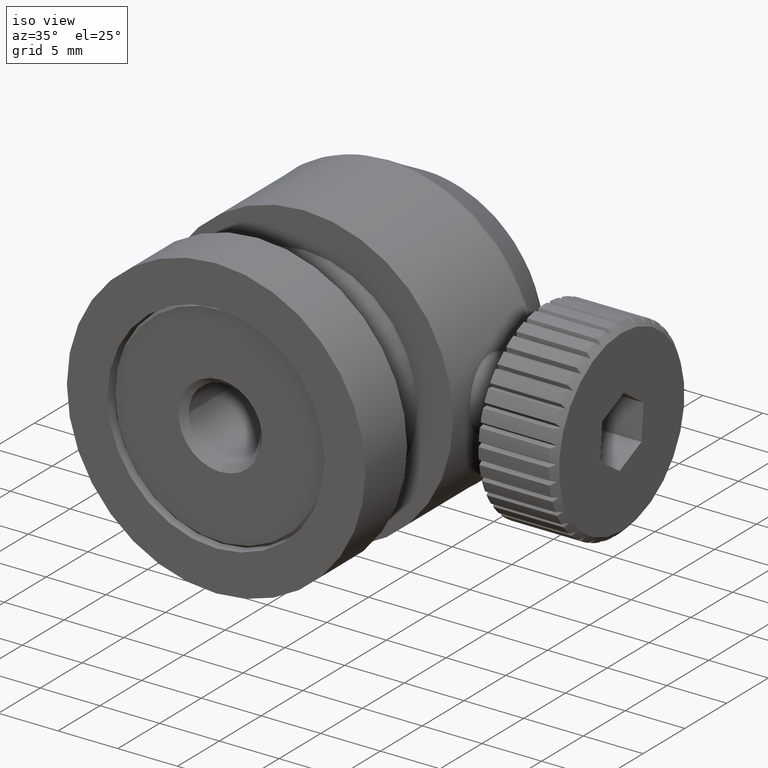
[diagram: clean part render]
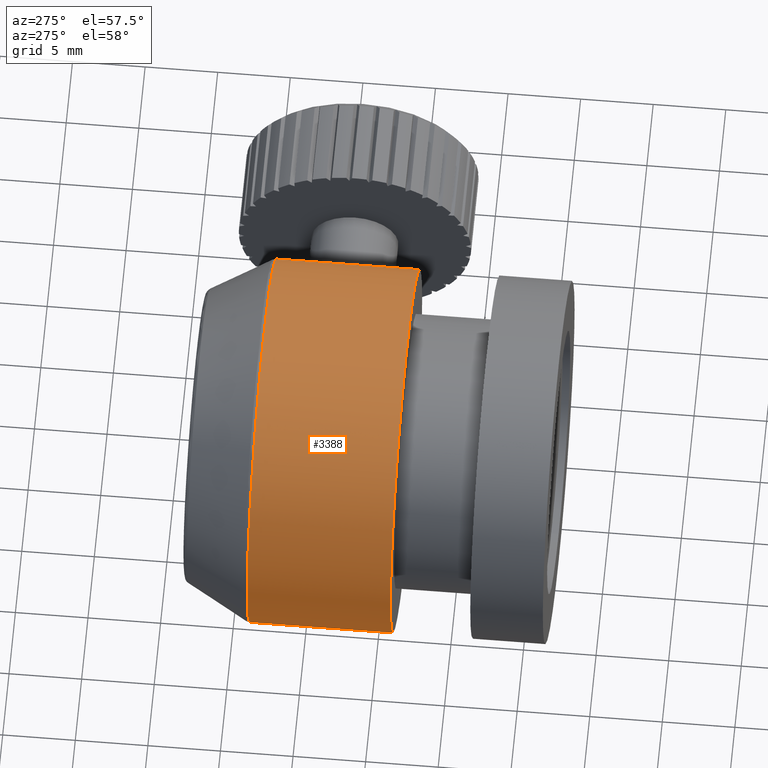
[diagram: tour spotlight — one face highlighted and labeled with its STEP entity id]
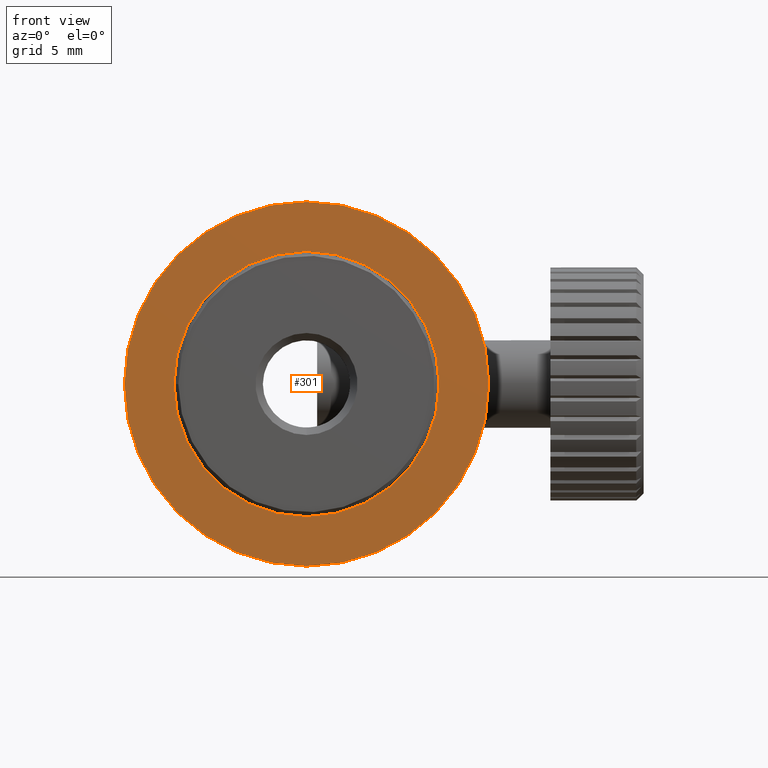
[diagram: tour spotlight — one face highlighted and labeled with its STEP entity id]
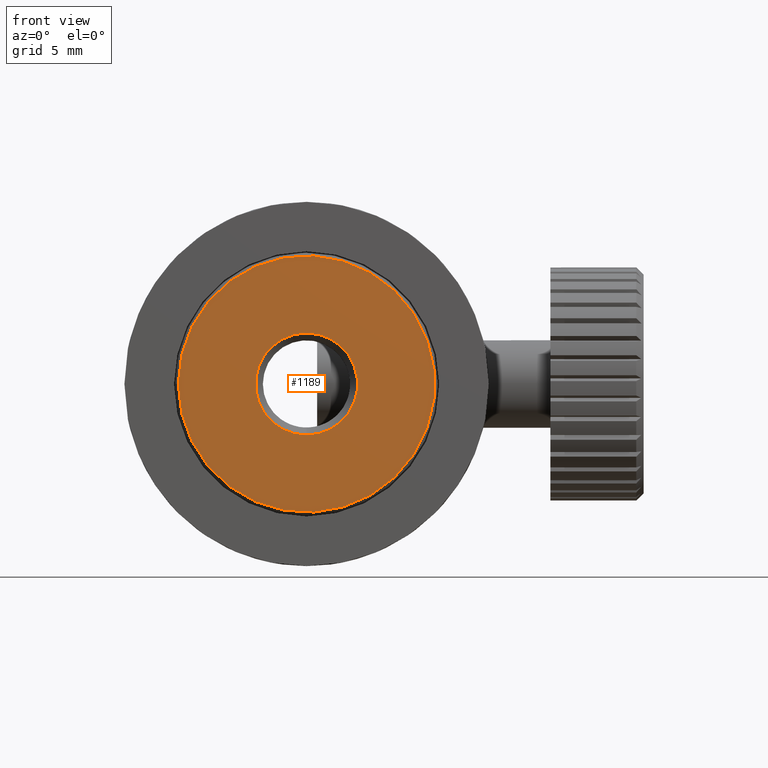
[diagram: tour spotlight — one face highlighted and labeled with its STEP entity id]
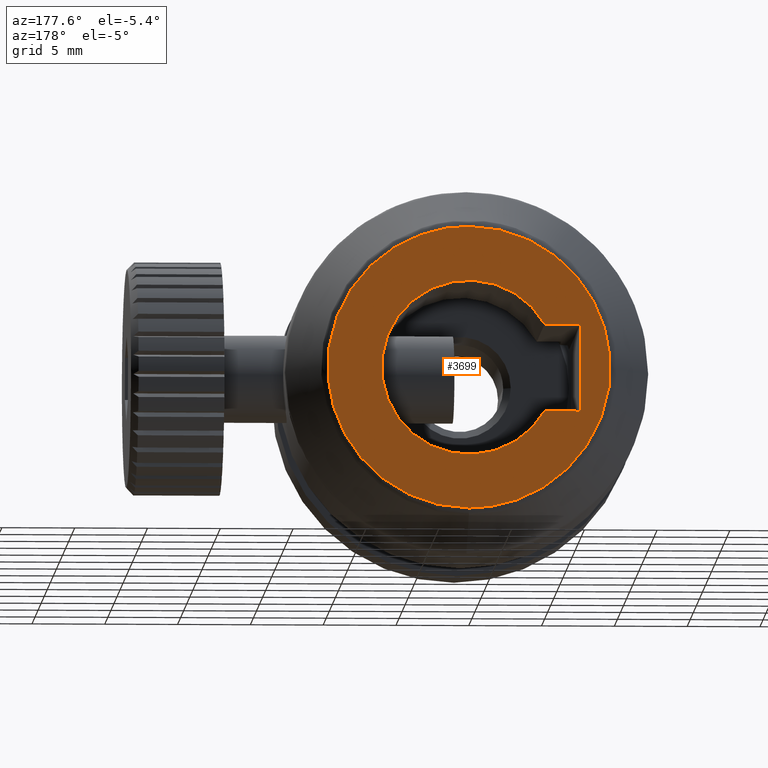
[diagram: tour spotlight — one face highlighted and labeled with its STEP entity id]
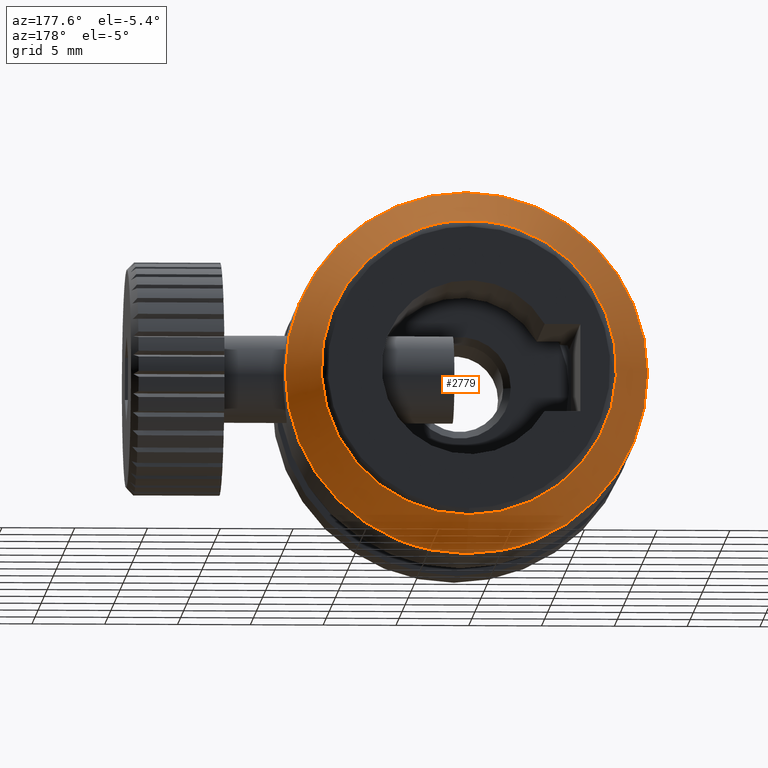
[diagram: tour spotlight — one face highlighted and labeled with its STEP entity id]
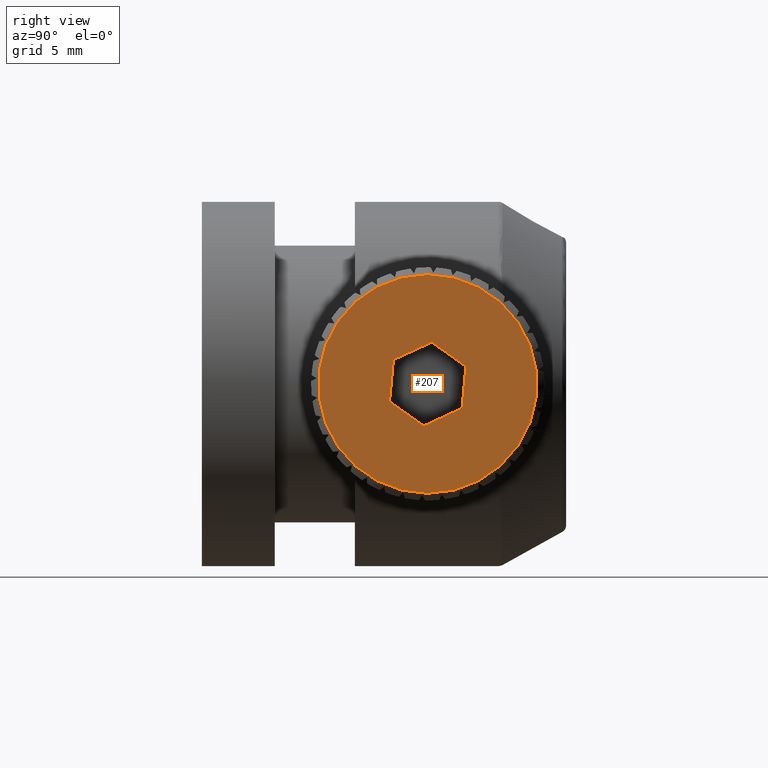
[diagram: tour spotlight — one face highlighted and labeled with its STEP entity id]
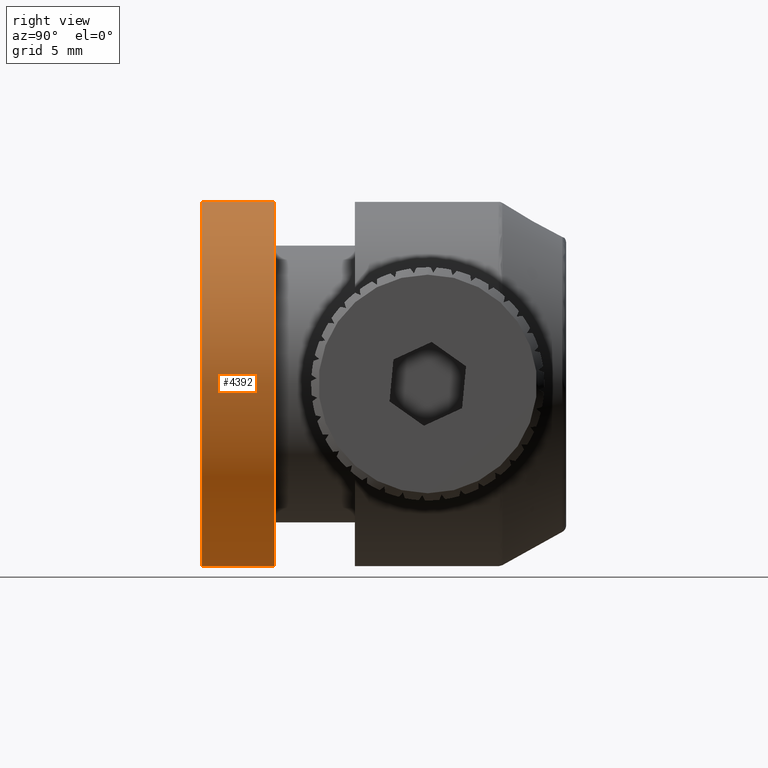
[diagram: tour spotlight — one face highlighted and labeled with its STEP entity id]
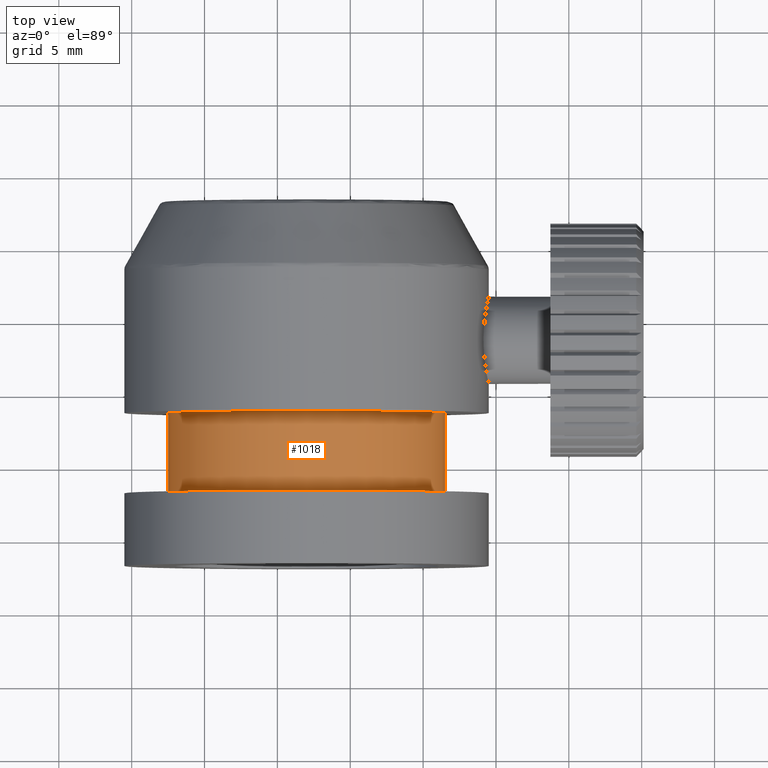
[diagram: tour spotlight — one face highlighted and labeled with its STEP entity id]
A machine part: a face-by-face anatomy tour. The part has 154 B-rep faces; the first image is the clean iso view, then the 8 largest visible faces are spotlighted one at a time (largest first), each with its STEP entity span.

Face 1 — auxiliary view, entity #3388. In plain terms, the highlighted cylindrical surface (bore or boss wall) has radius 12.5 mm, axis along (-0, -1, -0).
Definition (entity closure, byte-faithful):
#24 = CARTESIAN_POINT ( 'NONE',  ( 9.163176609315401677, 4.514492835842152552, -4.021707213226034305 ) ) ;
#76 = CARTESIAN_POINT ( 'NONE',  ( 9.500769051283153743, 6.682619336287463518, -1.281978667220213586 ) ) ;
#79 = DIRECTION ( 'NONE',  ( -0.000000000000000000, -1.000000000000000000, -0.000000000000000000 ) ) ;
#99 = CARTESIAN_POINT ( 'NONE',  ( 9.350215221376533492, 5.977588247585364556, -3.078107849027253984 ) ) ;
#116 = CARTESIAN_POINT ( 'NONE',  ( 9.500769051283150191, 6.682619336287461742, -1.281978667220213364 ) ) ;
#260 = EDGE_LOOP ( 'NONE', ( #4182 ) ) ;
#361 = CARTESIAN_POINT ( 'NONE',  ( 9.475626162119899831, 6.576659514297270803, -0.3040923682111593696 ) ) ;
#408 = CARTESIAN_POINT ( 'NONE',  ( 9.134845968783585235, 3.734947239153960208, -4.137683601139375611 ) ) ;
#433 = CARTESIAN_POINT ( 'NONE',  ( 9.500721253213100681, 0.6902226663362029946, -1.380176275664624086 ) ) ;
#459 = CARTESIAN_POINT ( 'NONE',  ( 9.498379621943797702, 6.672651579155293611, -1.480653724934849258 ) ) ;
#466 = CARTESIAN_POINT ( 'NONE',  ( -2.998327019143730343, 8.556824926291442424, -1.131654277185413671 ) ) ;
#476 = VERTEX_POINT ( 'NONE', #3218 ) ;
#490 = CARTESIAN_POINT ( 'NONE',  ( 9.453531733571725937, 0.8925454330711524165, -0.02124282320555520576 ) ) ;
#511 = CARTESIAN_POINT ( 'NONE',  ( 9.395644190629806047, 6.210992014393335481, -2.764031263225652069 ) ) ;
#684 = CARTESIAN_POINT ( 'NONE',  ( 9.137221659089169279, 3.441916285020556909, 1.864902151995117219 ) ) ;
#706 = CARTESIAN_POINT ( 'NONE',  ( 9.350229071283225224, 1.395113090282477319, 0.8147122959667493225 ) ) ;
#718 = AXIS2_PLACEMENT_3D ( 'NONE', #2115, #4986, #3811 ) ;
#750 = CARTESIAN_POINT ( 'NONE',  ( 9.151403641072686668, 3.050636586225807356, 1.806872060831741233 ) ) ;
#802 = CARTESIAN_POINT ( 'NONE',  ( -2.998327019143730343, 13.18638794039016382, -1.131654277185413671 ) ) ;
#1042 = B_SPLINE_CURVE_WITH_KNOTS ( 'NONE', 3,
 ( #76, #459, #2037, #4850, #4354, #1624, #511, #99, #3623, #1646, #4385, #2375, #2454, #24, #3965, #3203, #408, #3229, #3671, #3593, #4770, #4463, #1982, #3570, #3178, #3992, #4825, #1274, #2850, #1295, #2060, #433, #4408, #2006, #4800, #1250, #490, #4434, #2877, #706, #1505, #3454, #1909, #2726, #4307, #2676, #750, #684, #5066, #1553, #4334, #1151, #2330, #3157, #4726, #1201, #3915, #4751, #3522, #3133, #3086, #361, #4653, #3864, #3066, #2280 ),
 .UNSPECIFIED., .T., .F.,
 ( 4, 2, 2, 2, 2, 2, 2, 2, 2, 2, 2, 2, 2, 2, 2, 2, 2, 2, 2, 2, 2, 2, 2, 2, 2, 2, 2, 2, 2, 2, 2, 2, 4 ),
 ( 0.000000000000000000, 0.0005881664555554937113, 0.001176332911110986772, 0.001764499366666479833, 0.002352665822221972677, 0.002940832277777465954, 0.003528998733332959232, 0.004117165188888452509, 0.004705331644443946221, 0.005293498099999439932, 0.005881664555554933643, 0.006469831011110428222, 0.007057997466665922801, 0.007646163922221416512, 0.008234330377776911958, 0.008822496833332405669, 0.009410663288887901115, 0.009998829744443394826, 0.01058699619999888854, 0.01117516265555438225, 0.01176332911110987596, 0.01235149556666536967, 0.01293966202222086338, 0.01352782847777635709, 0.01411599493333184907, 0.01470416138888734278, 0.01529232784444283649, 0.01588049429999833020, 0.01646866075555382392, 0.01705682721110931763, 0.01764499366666481134, 0.01823316012222030505, 0.01882132657777580223 ),
 .UNSPECIFIED. ) ;
#1151 = CARTESIAN_POINT ( 'NONE',  ( 9.169892280574110544, 4.609257943614935904, 1.729616266510543676 ) ) ;
#1198 = CYLINDRICAL_SURFACE ( 'NONE', #2953, 12.50000000000000000 ) ;
#1201 = CARTESIAN_POINT ( 'NONE',  ( 9.290286899935319198, 5.631634723888747196, 1.160504087481614377 ) ) ;
#1250 = CARTESIAN_POINT ( 'NONE',  ( 9.469014655756220478, 0.8251341758155132933, -0.2088429828218351658 ) ) ;
#1274 = CARTESIAN_POINT ( 'NONE',  ( 9.426693008287031716, 1.014162850858614240, -2.509079807481182200 ) ) ;
#1295 = CARTESIAN_POINT ( 'NONE',  ( 9.475616185800644686, 0.7961592793452608730, -1.959364303262693063 ) ) ;
#1505 = CARTESIAN_POINT ( 'NONE',  ( 9.325840296848397770, 1.528746268889934701, 0.9618025633223470372 ) ) ;
#1553 = CARTESIAN_POINT ( 'NONE',  ( 9.139617462845981422, 4.030147580880958813, 1.855050062348168494 ) ) ;
#1624 = CARTESIAN_POINT ( 'NONE',  ( 9.416774122290975768, 6.311555873365544578, -2.596938967289602385 ) ) ;
#1628 = DIRECTION ( 'NONE',  ( -0.000000000000000000, -1.000000000000000000, -0.000000000000000000 ) ) ;
#1646 = CARTESIAN_POINT ( 'NONE',  ( 9.278534698509476542, 5.554983848913791711, -3.486718012574621106 ) ) ;
#1909 = CARTESIAN_POINT ( 'NONE',  ( 9.255383784605539788, 1.974211940572013102, 1.339642189448289056 ) ) ;
#1982 = CARTESIAN_POINT ( 'NONE',  ( 9.244650142299970952, 2.054076175215877598, -3.656239430481850849 ) ) ;
#2006 = CARTESIAN_POINT ( 'NONE',  ( 9.498385047728998387, 0.7001016363448165913, -0.7828446128214767707 ) ) ;
#2033 = EDGE_CURVE ( 'NONE', #476, #476, #2708, .T. ) ;
#2034 = CIRCLE ( 'NONE', #718, 12.50000000000000000 ) ;
#2037 = CARTESIAN_POINT ( 'NONE',  ( 9.491314626815036348, 6.643297461665347292, -1.674827156962167329 ) ) ;
#2060 = CARTESIAN_POINT ( 'NONE',  ( 9.486901362137471594, 0.7484079596056956163, -1.769653623332918313 ) ) ;
#2115 = CARTESIAN_POINT ( 'NONE',  ( -2.998327019143730343, -1.313612059609838401, -1.131654277185413671 ) ) ;
#2193 = EDGE_CURVE ( 'NONE', #4423, #4423, #2034, .T. ) ;
#2280 = CARTESIAN_POINT ( 'NONE',  ( 9.500769051283153743, 6.682619336287463518, -1.281978667220213586 ) ) ;
#2330 = CARTESIAN_POINT ( 'NONE',  ( 9.185441045650920344, 4.793412070943418257, 1.663566113122384005 ) ) ;
#2375 = CARTESIAN_POINT ( 'NONE',  ( 9.212728881278479776, 5.060434209225719293, -3.805761009313503251 ) ) ;
#2430 = DIRECTION ( 'NONE',  ( 0.000000000000000000, 0.000000000000000000, -1.000000000000000000 ) ) ;
#2454 = CARTESIAN_POINT ( 'NONE',  ( 9.193745087608244049, 4.882301594918082799, -3.889906300098157743 ) ) ;
#2471 = CARTESIAN_POINT ( 'NONE',  ( -2.998327019143730343, -1.313612059609838401, -13.63165427718541345 ) ) ;
#2676 = CARTESIAN_POINT ( 'NONE',  ( 9.163179187320837471, 2.858243764692179223, 1.758387946751902797 ) ) ;
#2708 = CIRCLE ( 'NONE', #4779, 12.50000000000000000 ) ;
#2726 = CARTESIAN_POINT ( 'NONE',  ( 9.212735498135756984, 2.312282415570549698, 1.542422551742604897 ) ) ;
#2850 = CARTESIAN_POINT ( 'NONE',  ( 9.445586626568635680, 0.9286443963139656699, -2.328891156629207426 ) ) ;
#2877 = CARTESIAN_POINT ( 'NONE',  ( 9.395658610685588386, 1.161713166734947844, 0.5006142555900848778 ) ) ;
#2889 = EDGE_LOOP ( 'NONE', ( #4208 ) ) ;
#2953 = AXIS2_PLACEMENT_3D ( 'NONE', #802, #79, #2430 ) ;
#3066 = CARTESIAN_POINT ( 'NONE',  ( 9.503158480622509785, 6.692587093419634314, -1.083303609505577469 ) ) ;
#3086 = CARTESIAN_POINT ( 'NONE',  ( 9.445599072311253508, 6.444187492963299846, 0.06545478716418613729 ) ) ;
#3133 = CARTESIAN_POINT ( 'NONE',  ( 9.426705968667430824, 6.358673202455701556, 0.2456557266747805279 ) ) ;
#3157 = CARTESIAN_POINT ( 'NONE',  ( 9.222907271617101443, 5.149215940732495334, 1.494920240591327776 ) ) ;
#3159 = ORIENTED_EDGE ( 'NONE', *, *, #2193, .T. ) ;
#3178 = CARTESIAN_POINT ( 'NONE',  ( 9.314489278056242938, 1.595377278743747018, -3.291832648624133828 ) ) ;
#3203 = CARTESIAN_POINT ( 'NONE',  ( 9.137221461661958699, 3.930843337945530980, -4.128211476783869571 ) ) ;
#3218 = CARTESIAN_POINT ( 'NONE',  ( -2.998327019143730343, 8.556824926291442424, -13.63165427718541345 ) ) ;
#3229 = CARTESIAN_POINT ( 'NONE',  ( 9.139617363989675169, 3.342636433386644068, -4.118359017095328589 ) ) ;
#3388 = ADVANCED_FACE ( 'NONE', ( #4332, #3968, #3548 ), #1198, .T. ) ;
#3454 = CARTESIAN_POINT ( 'NONE',  ( 9.278545326057347609, 1.817722071276930862, 1.223354638991832388 ) ) ;
#3522 = CARTESIAN_POINT ( 'NONE',  ( 9.385037029951631027, 6.157697096704836781, 0.5802810085369406456 ) ) ;
#3548 = FACE_BOUND ( 'NONE', #2889, .T. ) ;
#3570 = CARTESIAN_POINT ( 'NONE',  ( 9.290277126451748302, 1.741203175325201302, -3.423864591430237247 ) ) ;
#3593 = CARTESIAN_POINT ( 'NONE',  ( 9.169890038928070197, 2.763549005709383444, -3.992934291983290862 ) ) ;
#3623 = CARTESIAN_POINT ( 'NONE',  ( 9.325827379994288790, 5.843955711924929908, -3.225186502476228512 ) ) ;
#3628 = DIRECTION ( 'NONE',  ( 0.000000000000000000, 0.000000000000000000, -1.000000000000000000 ) ) ;
#3671 = CARTESIAN_POINT ( 'NONE',  ( 9.146945875692960470, 3.144374087183303690, -4.088811020642943994 ) ) ;
#3770 = EDGE_LOOP ( 'NONE', ( #3159 ) ) ;
#3811 = DIRECTION ( 'NONE',  ( 0.000000000000000000, 0.000000000000000000, -1.000000000000000000 ) ) ;
#3864 = CARTESIAN_POINT ( 'NONE',  ( 9.500725014924435996, 6.682568817747568168, -0.8833129565033172037 ) ) ;
#3915 = CARTESIAN_POINT ( 'NONE',  ( 9.314500426647823517, 5.777464247714756418, 1.028461208328204091 ) ) ;
#3965 = CARTESIAN_POINT ( 'NONE',  ( 9.151402073302767448, 4.322106849381766480, -4.070187067645612444 ) ) ;
#3968 = FACE_OUTER_BOUND ( 'NONE', #3770, .T. ) ;
#3992 = CARTESIAN_POINT ( 'NONE',  ( 9.362094269580170547, 1.331203265409273584, -3.000290499216278661 ) ) ;
#4182 = ORIENTED_EDGE ( 'NONE', *, *, #2033, .T. ) ;
#4208 = ORIENTED_EDGE ( 'NONE', *, *, #4214, .T. ) ;
#4214 = EDGE_CURVE ( 'NONE', #4865, #4865, #1042, .T. ) ;
#4307 = CARTESIAN_POINT ( 'NONE',  ( 9.193750119214248784, 2.490422007122204739, 1.626575647665945645 ) ) ;
#4332 = FACE_OUTER_BOUND ( 'NONE', #260, .T. ) ;
#4334 = CARTESIAN_POINT ( 'NONE',  ( 9.146946489143264358, 4.228418112912099680, 1.825500006775789164 ) ) ;
#4354 = CARTESIAN_POINT ( 'NONE',  ( 9.453518627230382165, 6.480172170676156362, -2.242210702578229409 ) ) ;
#4385 = CARTESIAN_POINT ( 'NONE',  ( 9.255374477968643987, 5.398496969044234817, -3.602996551682191129 ) ) ;
#4408 = CARTESIAN_POINT ( 'NONE',  ( 9.503157809845655279, 0.6801916166517835149, -1.180210788842948277 ) ) ;
#4423 = VERTEX_POINT ( 'NONE', #2471 ) ;
#4434 = CARTESIAN_POINT ( 'NONE',  ( 9.416788454023858890, 1.061152375681476023, 0.3335104857750194607 ) ) ;
#4463 = CARTESIAN_POINT ( 'NONE',  ( 9.222901304211298168, 2.223610549188796970, -3.758256340760259828 ) ) ;
#4653 = CARTESIAN_POINT ( 'NONE',  ( 9.486909637658470729, 6.624402997508846980, -0.4938135560455436668 ) ) ;
#4726 = CARTESIAN_POINT ( 'NONE',  ( 9.244657403581834743, 5.318754495925146486, 1.392896068083119721 ) ) ;
#4751 = CARTESIAN_POINT ( 'NONE',  ( 9.362106818681176890, 6.041638473234493212, 0.7368996988469868059 ) ) ;
#4770 = CARTESIAN_POINT ( 'NONE',  ( 9.185437688590370797, 2.579401753456587176, -3.926889093533366015 ) ) ;
#4779 = AXIS2_PLACEMENT_3D ( 'NONE', #466, #1628, #3628 ) ;
#4800 = CARTESIAN_POINT ( 'NONE',  ( 9.491322428472400929, 0.7294456022757548341, -0.5886572243719735420 ) ) ;
#4825 = CARTESIAN_POINT ( 'NONE',  ( 9.385024062077828688, 1.215143669206614652, -2.843682247977645794 ) ) ;
#4850 = CARTESIAN_POINT ( 'NONE',  ( 9.469003021406001253, 6.547591151022704281, -2.054620626408857120 ) ) ;
#4865 = VERTEX_POINT ( 'NONE', #116 ) ;
#4986 = DIRECTION ( 'NONE',  ( 0.000000000000000000, 1.000000000000000000, 0.000000000000000000 ) ) ;
#5066 = CARTESIAN_POINT ( 'NONE',  ( 9.134845869828746245, 3.637820500037173055, 1.874375447543975781 ) ) ;

Face 2 — front view, entity #301. In plain terms, the highlighted planar face has unit normal (0, 1, 0).
Definition (entity closure, byte-faithful):
#129 = AXIS2_PLACEMENT_3D ( 'NONE', #2367, #760, #1997 ) ;
#152 = ORIENTED_EDGE ( 'NONE', *, *, #2526, .F. ) ;
#301 = ADVANCED_FACE ( 'NONE', ( #2713, #4294 ), #4711, .F. ) ;
#720 = EDGE_LOOP ( 'NONE', ( #3367 ) ) ;
#758 = DIRECTION ( 'NONE',  ( 0.000000000000000000, -0.000000000000000000, 1.000000000000000000 ) ) ;
#760 = DIRECTION ( 'NONE',  ( 0.000000000000000000, 1.000000000000000000, 0.000000000000000000 ) ) ;
#920 = VERTEX_POINT ( 'NONE', #1337 ) ;
#1337 = CARTESIAN_POINT ( 'NONE',  ( -2.998327019143730343, -11.81361205960983796, -13.63165427718541345 ) ) ;
#1535 = DIRECTION ( 'NONE',  ( 0.000000000000000000, 1.000000000000000000, 0.000000000000000000 ) ) ;
#1997 = DIRECTION ( 'NONE',  ( 0.000000000000000000, 0.000000000000000000, -1.000000000000000000 ) ) ;
#2257 = DIRECTION ( 'NONE',  ( 0.000000000000000000, 0.000000000000000000, -1.000000000000000000 ) ) ;
#2367 = CARTESIAN_POINT ( 'NONE',  ( -2.998327019143730343, -11.81361205960983796, -1.131654277185413671 ) ) ;
#2496 = VERTEX_POINT ( 'NONE', #2520 ) ;
#2520 = CARTESIAN_POINT ( 'NONE',  ( -2.998327019143730343, -11.81361205960983973, -10.23165427718541309 ) ) ;
#2526 = EDGE_CURVE ( 'NONE', #920, #920, #4441, .T. ) ;
#2713 = FACE_OUTER_BOUND ( 'NONE', #5024, .T. ) ;
#2758 = CARTESIAN_POINT ( 'NONE',  ( -2.998327019143730343, -11.81361205960983973, -1.131654277185413671 ) ) ;
#2836 = CIRCLE ( 'NONE', #3660, 9.099999999999999645 ) ;
#3367 = ORIENTED_EDGE ( 'NONE', *, *, #4221, .F. ) ;
#3660 = AXIS2_PLACEMENT_3D ( 'NONE', #4286, #5117, #2257 ) ;
#3715 = AXIS2_PLACEMENT_3D ( 'NONE', #2758, #1535, #758 ) ;
#4221 = EDGE_CURVE ( 'NONE', #2496, #2496, #2836, .T. ) ;
#4286 = CARTESIAN_POINT ( 'NONE',  ( -2.998327019143730343, -11.81361205960983973, -1.131654277185413671 ) ) ;
#4294 = FACE_BOUND ( 'NONE', #720, .T. ) ;
#4441 = CIRCLE ( 'NONE', #129, 12.50000000000000000 ) ;
#4711 = PLANE ( 'NONE',  #3715 ) ;
#5024 = EDGE_LOOP ( 'NONE', ( #152 ) ) ;
#5117 = DIRECTION ( 'NONE',  ( -0.000000000000000000, -1.000000000000000000, -0.000000000000000000 ) ) ;

Face 3 — front view, entity #1189. In plain terms, the highlighted planar face has unit normal (0, 1, 0).
Definition (entity closure, byte-faithful):
#141 = VERTEX_POINT ( 'NONE', #4030 ) ;
#357 = DIRECTION ( 'NONE',  ( -1.000000000000000000, 2.657379524761973340E-16, 0.000000000000000000 ) ) ;
#448 = VERTEX_POINT ( 'NONE', #2892 ) ;
#661 = CIRCLE ( 'NONE', #5105, 8.800000000000006040 ) ;
#786 = EDGE_LOOP ( 'NONE', ( #4756 ) ) ;
#824 = EDGE_CURVE ( 'NONE', #141, #141, #4379, .T. ) ;
#1031 = EDGE_LOOP ( 'NONE', ( #4174 ) ) ;
#1189 = ADVANCED_FACE ( 'NONE', ( #2325, #1929 ), #4330, .F. ) ;
#1500 = EDGE_CURVE ( 'NONE', #448, #448, #661, .T. ) ;
#1508 = DIRECTION ( 'NONE',  ( 0.000000000000000000, 0.000000000000000000, -1.000000000000000000 ) ) ;
#1892 = CARTESIAN_POINT ( 'NONE',  ( -2.998327019143730787, -11.31361205955272453, -1.131654277185413893 ) ) ;
#1929 = FACE_BOUND ( 'NONE', #786, .T. ) ;
#2325 = FACE_OUTER_BOUND ( 'NONE', #1031, .T. ) ;
#2718 = AXIS2_PLACEMENT_3D ( 'NONE', #1892, #5069, #1508 ) ;
#2892 = CARTESIAN_POINT ( 'NONE',  ( -11.79832701914373594, -11.31361205960983263, -1.131654277185413671 ) ) ;
#3115 = DIRECTION ( 'NONE',  ( 2.624547560675372481E-16, 1.000000000000000000, 7.362305216606262492E-17 ) ) ;
#3911 = DIRECTION ( 'NONE',  ( 2.657379524761973340E-16, 1.000000000000000000, 3.090935980573470447E-17 ) ) ;
#4030 = CARTESIAN_POINT ( 'NONE',  ( -2.998327019143730787, -11.31361205955272453, -4.631654277217520210 ) ) ;
#4174 = ORIENTED_EDGE ( 'NONE', *, *, #1500, .F. ) ;
#4291 = CARTESIAN_POINT ( 'NONE',  ( -2.998327019143730787, -11.31361205960983440, -1.131654277185413671 ) ) ;
#4312 = DIRECTION ( 'NONE',  ( -1.000000000000000000, 1.971276677246370286E-16, 0.000000000000000000 ) ) ;
#4330 = PLANE ( 'NONE',  #5132 ) ;
#4379 = CIRCLE ( 'NONE', #2718, 3.500000000032106762 ) ;
#4671 = CARTESIAN_POINT ( 'NONE',  ( -2.998327019143730787, -11.31361205960983440, -1.131654277185413671 ) ) ;
#4756 = ORIENTED_EDGE ( 'NONE', *, *, #824, .T. ) ;
#5069 = DIRECTION ( 'NONE',  ( -0.000000000000000000, 1.000000000000000000, -0.000000000000000000 ) ) ;
#5105 = AXIS2_PLACEMENT_3D ( 'NONE', #4291, #3115, #4312 ) ;
#5132 = AXIS2_PLACEMENT_3D ( 'NONE', #4671, #3911, #357 ) ;

Face 4 — auxiliary view, entity #3699. In plain terms, the highlighted planar face has unit normal (0, 1, 0).
Definition (entity closure, byte-faithful):
#12 = CARTESIAN_POINT ( 'NONE',  ( 16.41326963185770182, 13.18638794039016560, 8.574144048315305966 ) ) ;
#43 = LINE ( 'NONE', #3199, #827 ) ;
#46 = CARTESIAN_POINT ( 'NONE',  ( -2.998327019143730343, 13.18638794039016382, -1.131654277185413671 ) ) ;
#88 = EDGE_CURVE ( 'NONE', #3710, #2491, #43, .T. ) ;
#163 =( BOUNDED_CURVE ( )  B_SPLINE_CURVE ( 3, ( #183, #3337, #1378, #1902 ),
 .UNSPECIFIED., .F., .F. ) 
 B_SPLINE_CURVE_WITH_KNOTS ( ( 4, 4 ),
 ( 0.000000000000000000, 1.000000000000000000 ),
 .UNSPECIFIED. ) 
 CURVE ( )  GEOMETRIC_REPRESENTATION_ITEM ( )  RATIONAL_B_SPLINE_CURVE ( ( 1.000000000000000000, 0.3333333333333333703, 0.3333333333333333703, 1.000000000000000000 ) ) 
 REPRESENTATION_ITEM ( '' )  );
#183 = CARTESIAN_POINT ( 'NONE',  ( -2.998327019143730343, 13.18638794039016560, 8.574144048315302413 ) ) ;
#258 = CIRCLE ( 'NONE', #503, 6.000000000000000000 ) ;
#275 = EDGE_CURVE ( 'NONE', #3309, #901, #1219, .T. ) ;
#317 = EDGE_CURVE ( 'NONE', #1846, #2817, #3534, .T. ) ;
#503 = AXIS2_PLACEMENT_3D ( 'NONE', #46, #1620, #2821 ) ;
#544 = CARTESIAN_POINT ( 'NONE',  ( -2.998327019143730343, 13.18638794039016560, 8.574144048315302413 ) ) ;
#680 = CARTESIAN_POINT ( 'NONE',  ( -10.64832701914373025, 13.18638794039016382, -1.131654277185413671 ) ) ;
#737 = DIRECTION ( 'NONE',  ( -1.000000000000000000, -0.000000000000000000, 0.000000000000000000 ) ) ;
#742 = CARTESIAN_POINT ( 'NONE',  ( -2.998327019143730343, 13.18638794039016382, -1.131654277185413671 ) ) ;
#785 = CARTESIAN_POINT ( 'NONE',  ( -2.998327019143730343, 13.18638794039016560, 8.574144048315302413 ) ) ;
#797 = AXIS2_PLACEMENT_3D ( 'NONE', #742, #4252, #2323 ) ;
#827 = VECTOR ( 'NONE', #4793, 1000.000000000000000 ) ;
#885 = VECTOR ( 'NONE', #2201, 1000.000000000000000 ) ;
#897 = EDGE_LOOP ( 'NONE', ( #2991, #2081, #4945, #1264 ) ) ;
#901 = VERTEX_POINT ( 'NONE', #544 ) ;
#1135 = CARTESIAN_POINT ( 'NONE',  ( 16.41326963185770182, 13.18638794039016560, -10.83745260268612931 ) ) ;
#1219 =( BOUNDED_CURVE ( )  B_SPLINE_CURVE ( 3, ( #3142, #1135, #12, #785 ),
 .UNSPECIFIED., .F., .T. ) 
 B_SPLINE_CURVE_WITH_KNOTS ( ( 4, 4 ),
 ( 0.000000000000000000, 1.000000000000000000 ),
 .UNSPECIFIED. ) 
 CURVE ( )  GEOMETRIC_REPRESENTATION_ITEM ( )  RATIONAL_B_SPLINE_CURVE ( ( 1.000000000000000000, 0.3333333333333333703, 0.3333333333333333703, 1.000000000000000000 ) ) 
 REPRESENTATION_ITEM ( '' )  );
#1264 = ORIENTED_EDGE ( 'NONE', *, *, #88, .T. ) ;
#1378 = CARTESIAN_POINT ( 'NONE',  ( -22.40992367014515807, 13.18638794039016560, -10.83745260268612931 ) ) ;
#1620 = DIRECTION ( 'NONE',  ( -0.000000000000000000, -1.000000000000000000, -0.000000000000000000 ) ) ;
#1846 = VERTEX_POINT ( 'NONE', #1961 ) ;
#1881 = FACE_BOUND ( 'NONE', #897, .T. ) ;
#1902 = CARTESIAN_POINT ( 'NONE',  ( -2.998327019143729011, 13.18638794039016560, -10.83745260268613109 ) ) ;
#1961 = CARTESIAN_POINT ( 'NONE',  ( -8.194479441850365475, 13.18638794039016382, 1.868345722814582555 ) ) ;
#2081 = ORIENTED_EDGE ( 'NONE', *, *, #317, .T. ) ;
#2200 = EDGE_LOOP ( 'NONE', ( #2494, #3696 ) ) ;
#2201 = DIRECTION ( 'NONE',  ( -0.000000000000000000, 0.000000000000000000, -1.000000000000000000 ) ) ;
#2296 = CARTESIAN_POINT ( 'NONE',  ( -10.64832701914373203, 13.18638794039016382, -4.131654277185413449 ) ) ;
#2323 = DIRECTION ( 'NONE',  ( 0.000000000000000000, -0.000000000000000000, 1.000000000000000000 ) ) ;
#2491 = VERTEX_POINT ( 'NONE', #4091 ) ;
#2494 = ORIENTED_EDGE ( 'NONE', *, *, #275, .F. ) ;
#2817 = VERTEX_POINT ( 'NONE', #4579 ) ;
#2821 = DIRECTION ( 'NONE',  ( 0.000000000000000000, 0.000000000000000000, 1.000000000000000000 ) ) ;
#2991 = ORIENTED_EDGE ( 'NONE', *, *, #3908, .T. ) ;
#3142 = CARTESIAN_POINT ( 'NONE',  ( -2.998327019143729011, 13.18638794039016560, -10.83745260268613109 ) ) ;
#3176 = EDGE_CURVE ( 'NONE', #2817, #3710, #3425, .T. ) ;
#3199 = CARTESIAN_POINT ( 'NONE',  ( -2.998327019143730343, 13.18638794039016382, -4.131654277185413449 ) ) ;
#3309 = VERTEX_POINT ( 'NONE', #5064 ) ;
#3337 = CARTESIAN_POINT ( 'NONE',  ( -22.40992367014515807, 13.18638794039016560, 8.574144048315302413 ) ) ;
#3425 = LINE ( 'NONE', #680, #885 ) ;
#3467 = VECTOR ( 'NONE', #737, 1000.000000000000000 ) ;
#3534 = LINE ( 'NONE', #5128, #3467 ) ;
#3687 = EDGE_CURVE ( 'NONE', #901, #3309, #163, .T. ) ;
#3696 = ORIENTED_EDGE ( 'NONE', *, *, #3687, .F. ) ;
#3699 = ADVANCED_FACE ( 'NONE', ( #3732, #1881 ), #4299, .T. ) ;
#3710 = VERTEX_POINT ( 'NONE', #2296 ) ;
#3732 = FACE_OUTER_BOUND ( 'NONE', #2200, .T. ) ;
#3908 = EDGE_CURVE ( 'NONE', #2491, #1846, #258, .T. ) ;
#4091 = CARTESIAN_POINT ( 'NONE',  ( -8.194479441850363699, 13.18638794039016382, -4.131654277185412560 ) ) ;
#4252 = DIRECTION ( 'NONE',  ( 0.000000000000000000, 1.000000000000000000, 0.000000000000000000 ) ) ;
#4299 = PLANE ( 'NONE',  #797 ) ;
#4579 = CARTESIAN_POINT ( 'NONE',  ( -10.64832701914373203, 13.18638794039016382, 1.868345722814584109 ) ) ;
#4793 = DIRECTION ( 'NONE',  ( 1.000000000000000000, 0.000000000000000000, -0.000000000000000000 ) ) ;
#4945 = ORIENTED_EDGE ( 'NONE', *, *, #3176, .T. ) ;
#5064 = CARTESIAN_POINT ( 'NONE',  ( -2.998327019143729011, 13.18638794039016560, -10.83745260268613109 ) ) ;
#5128 = CARTESIAN_POINT ( 'NONE',  ( -2.998327019143730343, 13.18638794039016382, 1.868345722814582999 ) ) ;

Face 5 — auxiliary view, entity #2779. In plain terms, the highlighted conical surface has half-angle 29.055 deg.
Definition (entity closure, byte-faithful):
#238 = CARTESIAN_POINT ( 'NONE',  ( -2.998327019143730343, 8.799646391880758145, -1.131654277185413671 ) ) ;
#262 = DIRECTION ( 'NONE',  ( 0.000000000000000000, -1.000000000000000000, 0.000000000000000000 ) ) ;
#565 = CIRCLE ( 'NONE', #2219, 12.43707863806077185 ) ;
#607 = CARTESIAN_POINT ( 'NONE',  ( -2.998327019143730343, 8.799646391880758145, -1.131654277185413671 ) ) ;
#1082 = DIRECTION ( 'NONE',  ( 0.000000000000000000, -1.000000000000000000, 0.000000000000000000 ) ) ;
#1125 = EDGE_CURVE ( 'NONE', #1659, #1659, #565, .T. ) ;
#1659 = VERTEX_POINT ( 'NONE', #1710 ) ;
#1710 = CARTESIAN_POINT ( 'NONE',  ( -2.998327019143730343, 8.799646391880758145, 11.30542436087535840 ) ) ;
#1807 = DIRECTION ( 'NONE',  ( 0.000000000000000000, 0.000000000000000000, 1.000000000000000000 ) ) ;
#2169 = DIRECTION ( 'NONE',  ( 0.000000000000000000, 0.000000000000000000, -1.000000000000000000 ) ) ;
#2197 = AXIS2_PLACEMENT_3D ( 'NONE', #607, #1082, #4559 ) ;
#2205 = AXIS2_PLACEMENT_3D ( 'NONE', #4593, #262, #2169 ) ;
#2213 = EDGE_CURVE ( 'NONE', #3683, #3683, #4537, .T. ) ;
#2219 = AXIS2_PLACEMENT_3D ( 'NONE', #238, #3814, #1807 ) ;
#2700 = CONICAL_SURFACE ( 'NONE', #2197, 12.43707863806076830, 0.5070985043923358360 ) ;
#2779 = ADVANCED_FACE ( 'NONE', ( #2971, #4657 ), #2700, .T. ) ;
#2971 = FACE_BOUND ( 'NONE', #2975, .T. ) ;
#2975 = EDGE_LOOP ( 'NONE', ( #4685 ) ) ;
#3683 = VERTEX_POINT ( 'NONE', #4890 ) ;
#3814 = DIRECTION ( 'NONE',  ( -0.000000000000000000, -1.000000000000000000, -0.000000000000000000 ) ) ;
#3912 = EDGE_LOOP ( 'NONE', ( #5071 ) ) ;
#4537 = CIRCLE ( 'NONE', #2205, 10.14287696356148594 ) ;
#4559 = DIRECTION ( 'NONE',  ( 0.000000000000000000, 0.000000000000000000, -1.000000000000000000 ) ) ;
#4593 = CARTESIAN_POINT ( 'NONE',  ( -2.998327019143730343, 12.92920940597947599, -1.131654277185413671 ) ) ;
#4657 = FACE_OUTER_BOUND ( 'NONE', #3912, .T. ) ;
#4685 = ORIENTED_EDGE ( 'NONE', *, *, #2213, .T. ) ;
#4890 = CARTESIAN_POINT ( 'NONE',  ( -2.998327019143730343, 12.92920940597947599, -11.27453124074689939 ) ) ;
#5071 = ORIENTED_EDGE ( 'NONE', *, *, #1125, .F. ) ;

Face 6 — right view, entity #207. In plain terms, the highlighted planar face has unit normal (-1, -0, -0).
Definition (entity closure, byte-faithful):
#3 = DIRECTION ( 'NONE',  ( 0.000000000000000000, 0.000000000000000000, 1.000000000000000000 ) ) ;
#130 = LINE ( 'NONE', #2380, #551 ) ;
#200 = DIRECTION ( 'NONE',  ( -1.108828360943316334E-16, 0.000000000000000000, 1.000000000000000000 ) ) ;
#207 = ADVANCED_FACE ( 'NONE', ( #4483, #587 ), #2160, .F. ) ;
#369 = VERTEX_POINT ( 'NONE', #2390 ) ;
#395 = CARTESIAN_POINT ( 'NONE',  ( 20.13128916436953020, 3.419890326459812613, -4.006078107295148349 ) ) ;
#470 = EDGE_CURVE ( 'NONE', #1449, #369, #894, .T. ) ;
#551 = VECTOR ( 'NONE', #3574, 1000.000000000000114 ) ;
#552 = CARTESIAN_POINT ( 'NONE',  ( 20.13128916436953020, 3.686387940390166484, 6.368345722814594545 ) ) ;
#587 = FACE_BOUND ( 'NONE', #2112, .T. ) ;
#618 = LINE ( 'NONE', #2925, #2788 ) ;
#624 = ORIENTED_EDGE ( 'NONE', *, *, #470, .F. ) ;
#653 = EDGE_CURVE ( 'NONE', #1325, #2096, #4995, .T. ) ;
#708 = DIRECTION ( 'NONE',  ( 0.000000000000000000, -0.09231748148465020176, -0.9957296232473609177 ) ) ;
#723 = AXIS2_PLACEMENT_3D ( 'NONE', #3750, #1741, #200 ) ;
#881 = ORIENTED_EDGE ( 'NONE', *, *, #2035, .F. ) ;
#894 = LINE ( 'NONE', #4479, #3704 ) ;
#935 = EDGE_LOOP ( 'NONE', ( #4308 ) ) ;
#1099 = CARTESIAN_POINT ( 'NONE',  ( 20.13128916436953020, 3.686387940390166484, -1.131654277185411006 ) ) ;
#1325 = VERTEX_POINT ( 'NONE', #3649 ) ;
#1449 = VERTEX_POINT ( 'NONE', #2359 ) ;
#1519 = ORIENTED_EDGE ( 'NONE', *, *, #653, .F. ) ;
#1605 = CARTESIAN_POINT ( 'NONE',  ( 20.13128916436953020, 1.063815075306588032, -2.338072488528657011 ) ) ;
#1612 = LINE ( 'NONE', #395, #2168 ) ;
#1663 = CIRCLE ( 'NONE', #3996, 7.500000000000006217 ) ;
#1741 = DIRECTION ( 'NONE',  ( -1.000000000000000000, -5.563119965978913939E-18, -1.108828360943316334E-16 ) ) ;
#1931 = LINE ( 'NONE', #3104, #3040 ) ;
#2035 = EDGE_CURVE ( 'NONE', #2096, #2886, #130, .T. ) ;
#2096 = VERTEX_POINT ( 'NONE', #1605 ) ;
#2112 = EDGE_LOOP ( 'NONE', ( #624, #4925, #3764, #881, #1519, #2525 ) ) ;
#2160 = PLANE ( 'NONE',  #723 ) ;
#2168 = VECTOR ( 'NONE', #2389, 1000.000000000000000 ) ;
#2359 = CARTESIAN_POINT ( 'NONE',  ( 20.13128916436953020, 6.308960805473745381, 0.07476393415783201546 ) ) ;
#2380 = CARTESIAN_POINT ( 'NONE',  ( 20.13128916436953020, 1.063815075306588254, -2.338072488528656123 ) ) ;
#2386 = CARTESIAN_POINT ( 'NONE',  ( 20.13128916436953020, 3.419890326459812613, -4.006078107295151014 ) ) ;
#2389 = DIRECTION ( 'NONE',  ( 0.000000000000000000, 0.9084858897752483564, 0.4179155274445726098 ) ) ;
#2390 = CARTESIAN_POINT ( 'NONE',  ( 20.13128916436953020, 3.952885554320521688, 1.742769552924327670 ) ) ;
#2398 = VERTEX_POINT ( 'NONE', #3359 ) ;
#2420 = EDGE_CURVE ( 'NONE', #2398, #1449, #618, .T. ) ;
#2441 = DIRECTION ( 'NONE',  ( 0.000000000000000000, -0.8161684082905977800, 0.5778140958027867535 ) ) ;
#2525 = ORIENTED_EDGE ( 'NONE', *, *, #3334, .F. ) ;
#2788 = VECTOR ( 'NONE', #4512, 1000.000000000000114 ) ;
#2886 = VERTEX_POINT ( 'NONE', #2386 ) ;
#2925 = CARTESIAN_POINT ( 'NONE',  ( 20.13128916436953020, 6.042463191543390622, -2.799659895951907451 ) ) ;
#3040 = VECTOR ( 'NONE', #3888, 1000.000000000000000 ) ;
#3104 = CARTESIAN_POINT ( 'NONE',  ( 20.13128916436953020, 3.952885554320520800, 1.742769552924328558 ) ) ;
#3334 = EDGE_CURVE ( 'NONE', #369, #1325, #1931, .T. ) ;
#3359 = CARTESIAN_POINT ( 'NONE',  ( 20.13128916436953020, 6.042463191543390622, -2.799659895951907451 ) ) ;
#3375 = CARTESIAN_POINT ( 'NONE',  ( 20.13128916436953020, 1.330312689236943680, 0.5363513415810863272 ) ) ;
#3574 = DIRECTION ( 'NONE',  ( 0.000000000000000000, 0.8161684082905983351, -0.5778140958027860874 ) ) ;
#3649 = CARTESIAN_POINT ( 'NONE',  ( 20.13128916436953020, 1.330312689236943680, 0.5363513415810858831 ) ) ;
#3704 = VECTOR ( 'NONE', #2441, 1000.000000000000114 ) ;
#3750 = CARTESIAN_POINT ( 'NONE',  ( 20.13128916436953020, 3.686387940390166040, -1.131654277185411006 ) ) ;
#3764 = ORIENTED_EDGE ( 'NONE', *, *, #5074, .F. ) ;
#3888 = DIRECTION ( 'NONE',  ( 0.000000000000000000, -0.9084858897752480233, -0.4179155274445732760 ) ) ;
#3996 = AXIS2_PLACEMENT_3D ( 'NONE', #1099, #5092, #3 ) ;
#4079 = VERTEX_POINT ( 'NONE', #552 ) ;
#4263 = EDGE_CURVE ( 'NONE', #4079, #4079, #1663, .T. ) ;
#4308 = ORIENTED_EDGE ( 'NONE', *, *, #4263, .F. ) ;
#4479 = CARTESIAN_POINT ( 'NONE',  ( 20.13128916436953020, 6.308960805473745381, 0.07476393415783272323 ) ) ;
#4483 = FACE_OUTER_BOUND ( 'NONE', #935, .T. ) ;
#4512 = DIRECTION ( 'NONE',  ( 0.000000000000000000, 0.09231748148464993808, 0.9957296232473609177 ) ) ;
#4790 = VECTOR ( 'NONE', #708, 1000.000000000000000 ) ;
#4925 = ORIENTED_EDGE ( 'NONE', *, *, #2420, .F. ) ;
#4995 = LINE ( 'NONE', #3375, #4790 ) ;
#5074 = EDGE_CURVE ( 'NONE', #2886, #2398, #1612, .T. ) ;
#5092 = DIRECTION ( 'NONE',  ( -1.000000000000000000, -1.086546868355260268E-17, -2.165680392467415901E-16 ) ) ;

Face 7 — right view, entity #4392. In plain terms, the highlighted cylindrical surface (bore or boss wall) has radius 12.5 mm, axis along (-0, -1, -0).
Definition (entity closure, byte-faithful):
#129 = AXIS2_PLACEMENT_3D ( 'NONE', #2367, #760, #1997 ) ;
#481 = CIRCLE ( 'NONE', #1957, 12.50000000000000000 ) ;
#760 = DIRECTION ( 'NONE',  ( 0.000000000000000000, 1.000000000000000000, 0.000000000000000000 ) ) ;
#846 = AXIS2_PLACEMENT_3D ( 'NONE', #2406, #4777, #3599 ) ;
#920 = VERTEX_POINT ( 'NONE', #1337 ) ;
#939 = EDGE_CURVE ( 'NONE', #4448, #4448, #481, .T. ) ;
#1337 = CARTESIAN_POINT ( 'NONE',  ( -2.998327019143730343, -11.81361205960983796, -13.63165427718541345 ) ) ;
#1377 = EDGE_LOOP ( 'NONE', ( #4545 ) ) ;
#1652 = FACE_OUTER_BOUND ( 'NONE', #1377, .T. ) ;
#1957 = AXIS2_PLACEMENT_3D ( 'NONE', #4074, #3315, #2911 ) ;
#1987 = FACE_OUTER_BOUND ( 'NONE', #5042, .T. ) ;
#1997 = DIRECTION ( 'NONE',  ( 0.000000000000000000, 0.000000000000000000, -1.000000000000000000 ) ) ;
#2367 = CARTESIAN_POINT ( 'NONE',  ( -2.998327019143730343, -11.81361205960983796, -1.131654277185413671 ) ) ;
#2406 = CARTESIAN_POINT ( 'NONE',  ( -2.998327019143730343, 13.18638794039016382, -1.131654277185413671 ) ) ;
#2415 = CARTESIAN_POINT ( 'NONE',  ( -2.998327019143730343, -6.813612059609836180, -13.63165427718541345 ) ) ;
#2526 = EDGE_CURVE ( 'NONE', #920, #920, #4441, .T. ) ;
#2911 = DIRECTION ( 'NONE',  ( 0.000000000000000000, 0.000000000000000000, -1.000000000000000000 ) ) ;
#3183 = CYLINDRICAL_SURFACE ( 'NONE', #846, 12.50000000000000000 ) ;
#3315 = DIRECTION ( 'NONE',  ( -0.000000000000000000, -1.000000000000000000, -0.000000000000000000 ) ) ;
#3599 = DIRECTION ( 'NONE',  ( 0.000000000000000000, 0.000000000000000000, -1.000000000000000000 ) ) ;
#3957 = ORIENTED_EDGE ( 'NONE', *, *, #2526, .T. ) ;
#4074 = CARTESIAN_POINT ( 'NONE',  ( -2.998327019143730343, -6.813612059609836180, -1.131654277185413671 ) ) ;
#4392 = ADVANCED_FACE ( 'NONE', ( #1987, #1652 ), #3183, .T. ) ;
#4441 = CIRCLE ( 'NONE', #129, 12.50000000000000000 ) ;
#4448 = VERTEX_POINT ( 'NONE', #2415 ) ;
#4545 = ORIENTED_EDGE ( 'NONE', *, *, #939, .T. ) ;
#4777 = DIRECTION ( 'NONE',  ( -0.000000000000000000, -1.000000000000000000, -0.000000000000000000 ) ) ;
#5042 = EDGE_LOOP ( 'NONE', ( #3957 ) ) ;

Face 8 — top view, entity #1018. In plain terms, the highlighted cylindrical surface (bore or boss wall) has radius 9.5 mm, axis along (-0, -1, -0).
Definition (entity closure, byte-faithful):
#170 = VERTEX_POINT ( 'NONE', #2915 ) ;
#188 = CARTESIAN_POINT ( 'NONE',  ( -2.998327019143730343, -11.81361205960983973, -1.131654277185413671 ) ) ;
#265 = FACE_OUTER_BOUND ( 'NONE', #3529, .T. ) ;
#373 = CIRCLE ( 'NONE', #1382, 9.500000000000001776 ) ;
#471 = EDGE_LOOP ( 'NONE', ( #1570 ) ) ;
#623 = FACE_OUTER_BOUND ( 'NONE', #471, .T. ) ;
#713 = CARTESIAN_POINT ( 'NONE',  ( -2.998327019143730343, -1.313612059609838401, -1.131654277185413671 ) ) ;
#1018 = ADVANCED_FACE ( 'NONE', ( #265, #623 ), #4962, .T. ) ;
#1128 = CARTESIAN_POINT ( 'NONE',  ( -2.998327019143730343, -6.813612059609837068, -1.131654277185413671 ) ) ;
#1262 = VERTEX_POINT ( 'NONE', #3819 ) ;
#1382 = AXIS2_PLACEMENT_3D ( 'NONE', #1128, #1582, #3867 ) ;
#1478 = AXIS2_PLACEMENT_3D ( 'NONE', #188, #5041, #2960 ) ;
#1570 = ORIENTED_EDGE ( 'NONE', *, *, #5073, .T. ) ;
#1582 = DIRECTION ( 'NONE',  ( 0.000000000000000000, 1.000000000000000000, 0.000000000000000000 ) ) ;
#2677 = AXIS2_PLACEMENT_3D ( 'NONE', #713, #4313, #3192 ) ;
#2910 = EDGE_CURVE ( 'NONE', #170, #170, #373, .T. ) ;
#2915 = CARTESIAN_POINT ( 'NONE',  ( -2.998327019143730343, -6.813612059609837068, -10.63165427718541345 ) ) ;
#2960 = DIRECTION ( 'NONE',  ( 0.000000000000000000, 0.000000000000000000, -1.000000000000000000 ) ) ;
#3192 = DIRECTION ( 'NONE',  ( 0.000000000000000000, 0.000000000000000000, -1.000000000000000000 ) ) ;
#3529 = EDGE_LOOP ( 'NONE', ( #4356 ) ) ;
#3819 = CARTESIAN_POINT ( 'NONE',  ( -2.998327019143730343, -1.313612059609838401, -10.63165427718541345 ) ) ;
#3867 = DIRECTION ( 'NONE',  ( 0.000000000000000000, 0.000000000000000000, -1.000000000000000000 ) ) ;
#4313 = DIRECTION ( 'NONE',  ( -0.000000000000000000, -1.000000000000000000, -0.000000000000000000 ) ) ;
#4356 = ORIENTED_EDGE ( 'NONE', *, *, #2910, .T. ) ;
#4921 = CIRCLE ( 'NONE', #2677, 9.500000000000001776 ) ;
#4962 = CYLINDRICAL_SURFACE ( 'NONE', #1478, 9.500000000000001776 ) ;
#5041 = DIRECTION ( 'NONE',  ( -0.000000000000000000, -1.000000000000000000, -0.000000000000000000 ) ) ;
#5073 = EDGE_CURVE ( 'NONE', #1262, #1262, #4921, .T. ) ;